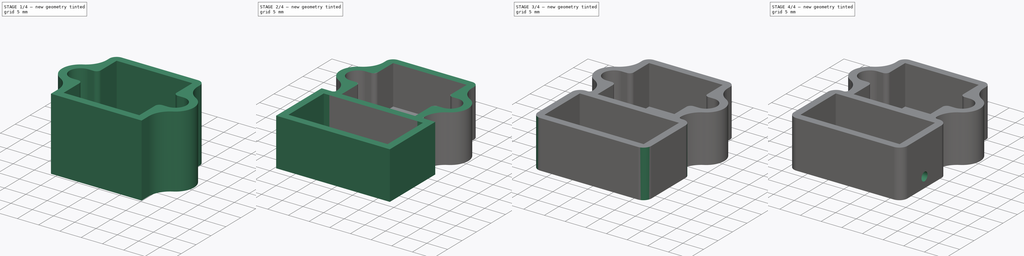
[diagram: build sequence overview — one tinted view per stage of 4, left to right]
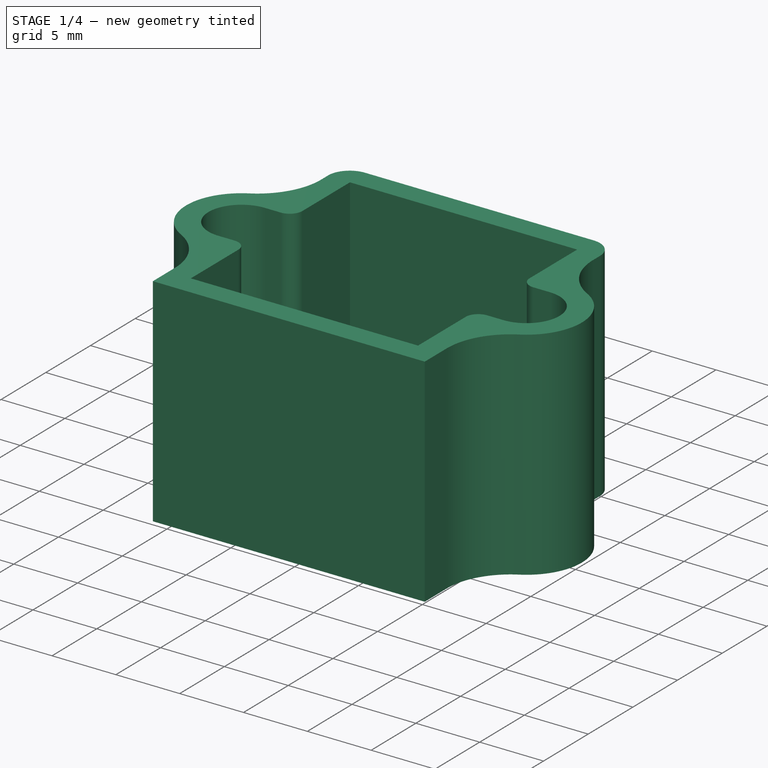
[diagram: stage 1 of 4 — iso view after this stage's code; geometry added in this stage tinted green]
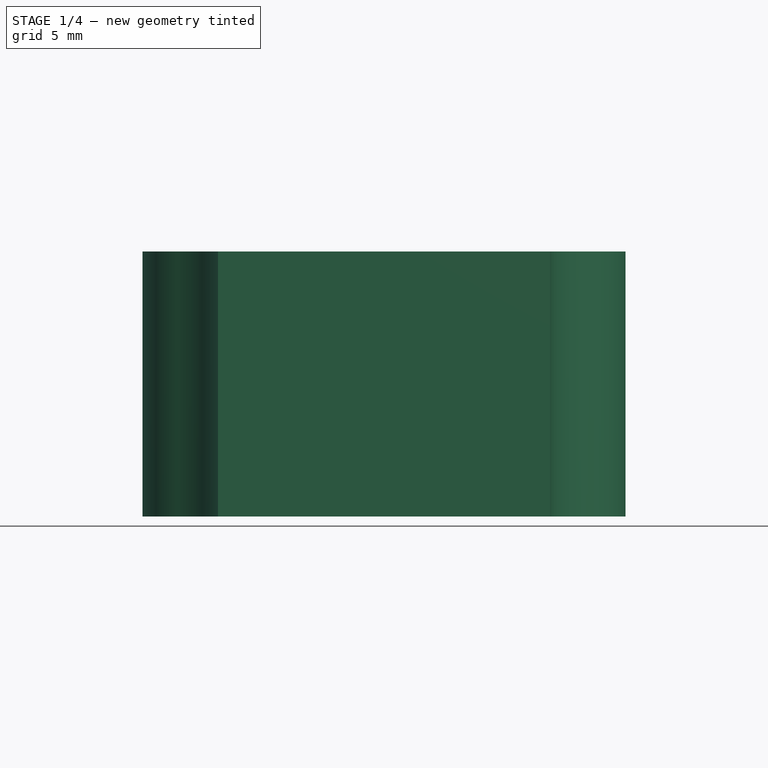
[diagram: stage 1 of 4 — front view after this stage's code; geometry added in this stage tinted green]
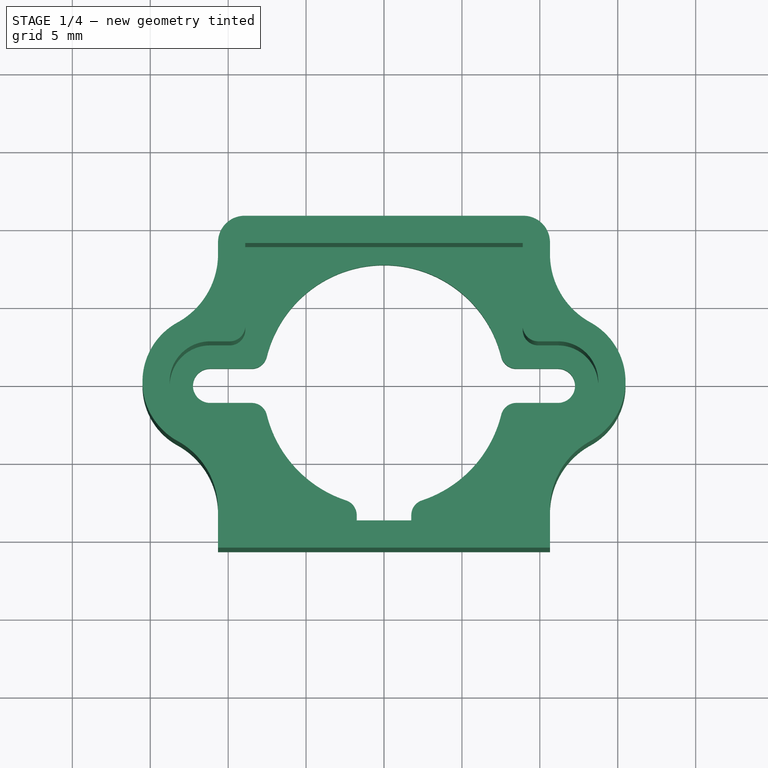
[diagram: stage 1 of 4 — top view after this stage's code; geometry added in this stage tinted green]
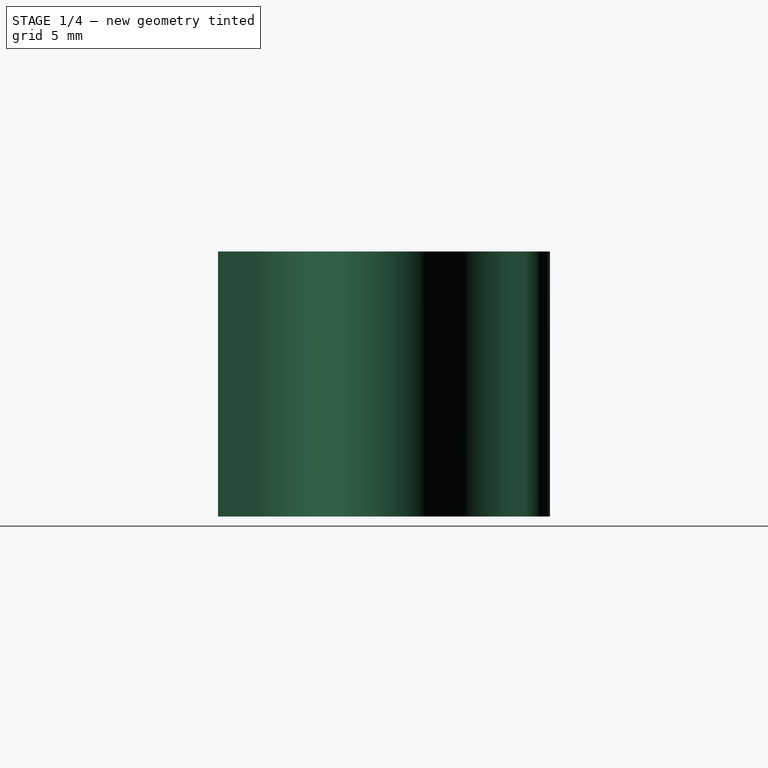
[diagram: stage 1 of 4 — right view after this stage's code; geometry added in this stage tinted green]
FCSTD DOCUMENT  (FreeCAD 0.21R33771 (Git))
Label: shield-can-s9g
License: All rights reserved
LicenseURL: http://en.wikipedia.org/wiki/All_rights_reserved
objects: Sketcher::SketchObject×5, PartDesign::Pocket×4, PartDesign::Pad×3, PartDesign::Fillet×3, Part::Feature×1, PartDesign::FeatureBase×1, PartDesign::Body×1
note: 28 computed .brp shape members not serialized (recipe doc carries the construction recipe); baked Part::Feature solids carry a one-line shape summary decoded from their .brp

FEATURE [Part::Feature] Body001
  shape: bbox 31 x 25.3 x 19.08 mm, 66 faces (baked)
FEATURE [PartDesign::FeatureBase] BaseFeature
  BaseFeature = -> Body001
FEATURE [PartDesign::Pocket] Pocket
  BaseFeature = -> BaseFeature
  Direction = (0,0,-1)
  Length = 5
  Length2 = 5
  Profile = -> BaseFeature [Face64]
  Type = 1
FEATURE [Sketcher::SketchObject] Sketch
  ExternalGeometry = -> [Pocket]
  FullyConstrained = true
  MapMode = 5
  Placement = pos=(0,-10.65,0) rot=(1,0,0;1.5708rad)
  Support = -> [Pocket]
  sketch-geometry (1):
    g0: Circle CenterX=0 CenterY=8.5 CenterZ=0 NormalX=0 NormalY=0 NormalZ=1 AngleXU=0 Radius=6.2
  constraints (2):
    c: Coincident(g0,g-3)
    c: Equal(g0,g-3)
FEATURE [PartDesign::Pad] Pad
  BaseFeature = -> Pocket
  Direction = (0,-1,2e-16)
  Length = 10
  Length2 = 10
  Profile = -> Sketch
  ReferenceAxis = -> Sketch [N_Axis]
  Type = 3
  UpToFace = -> Pocket [Face48]
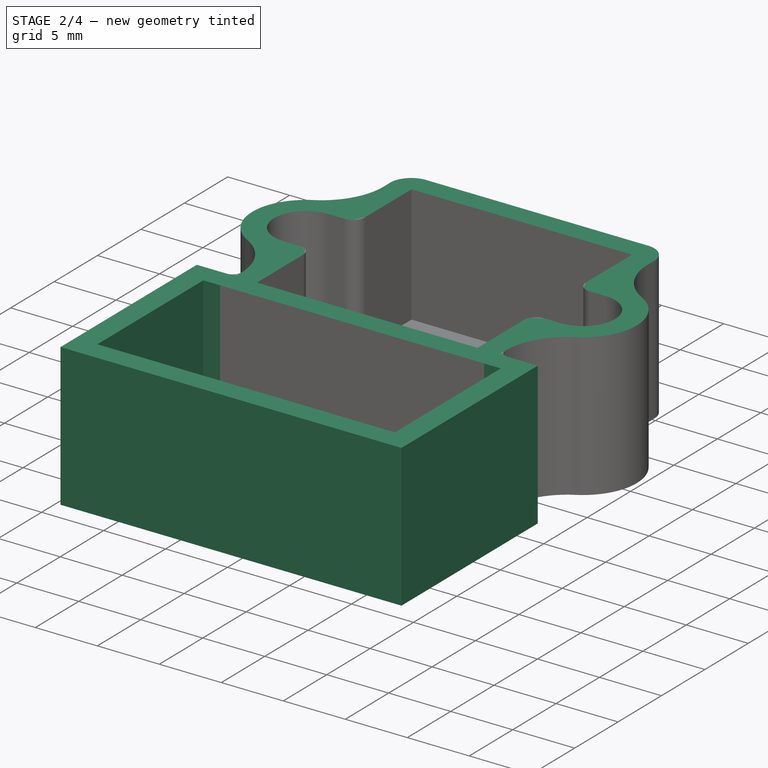
[diagram: stage 2 of 4 — iso view after this stage's code; geometry added in this stage tinted green]
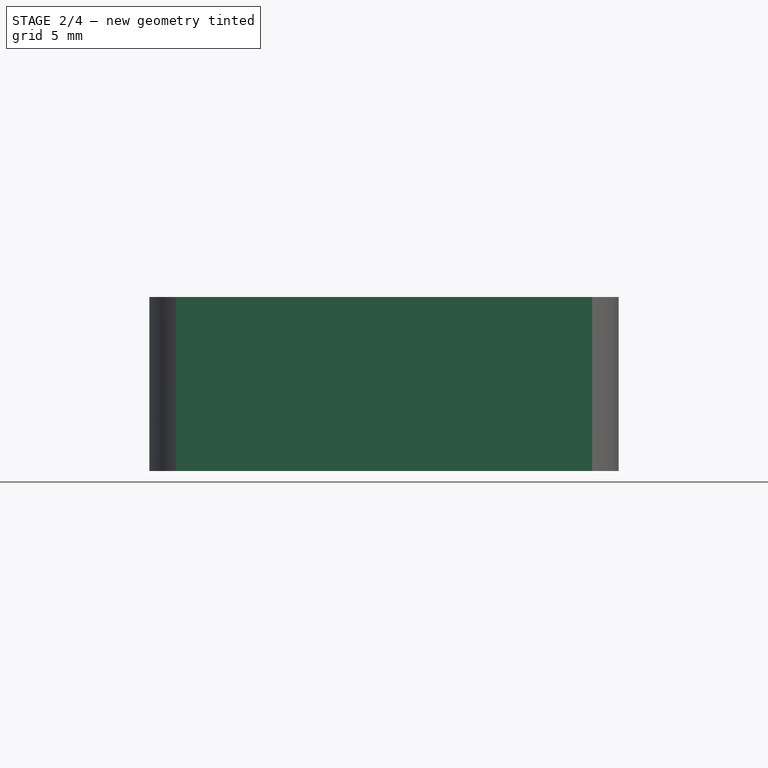
[diagram: stage 2 of 4 — front view after this stage's code; geometry added in this stage tinted green]
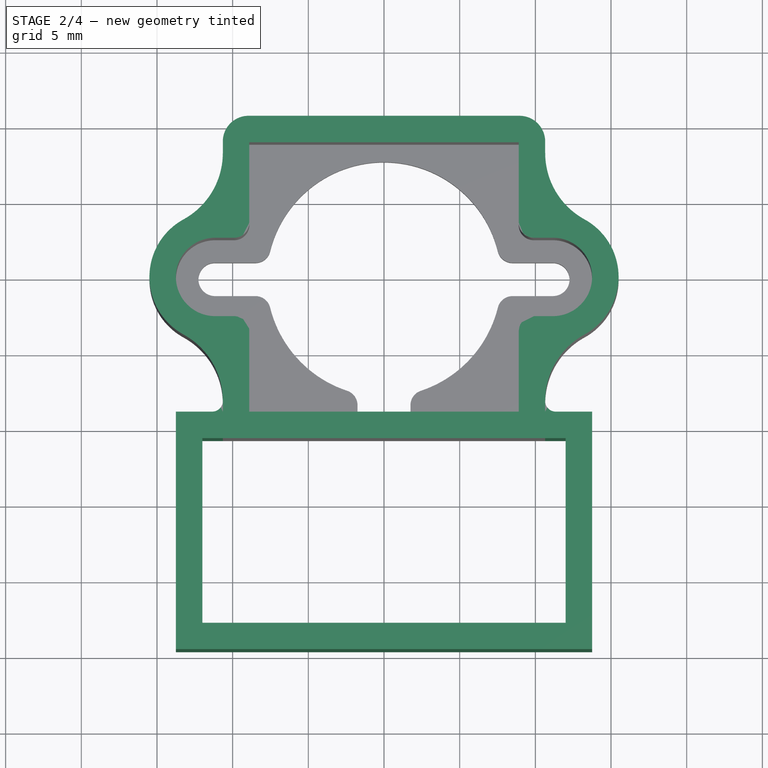
[diagram: stage 2 of 4 — top view after this stage's code; geometry added in this stage tinted green]
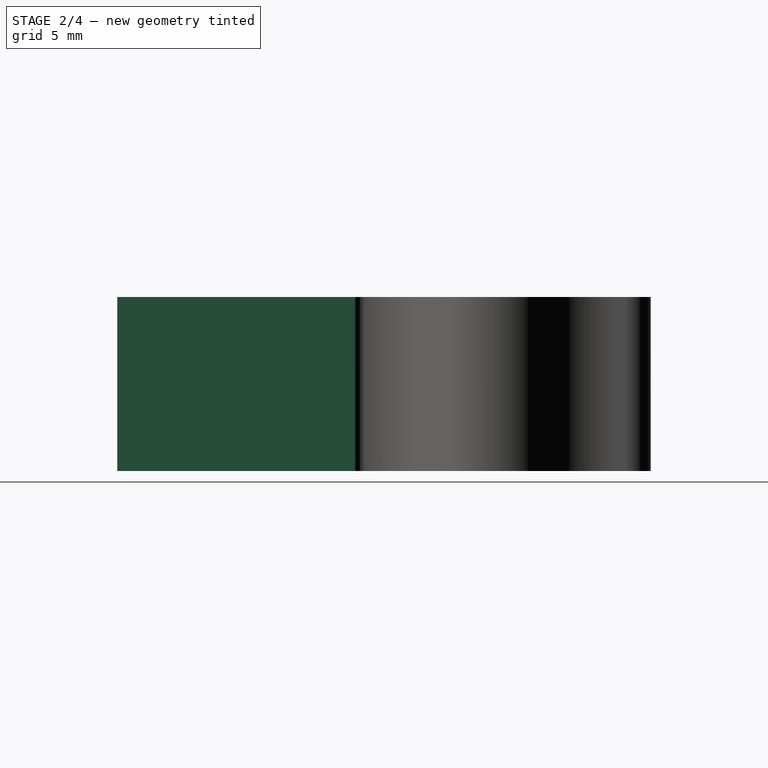
[diagram: stage 2 of 4 — right view after this stage's code; geometry added in this stage tinted green]
FEATURE [Sketcher::SketchObject] Sketch001
  ExternalGeometry = -> [Pad]
  FullyConstrained = true
  MapMode = 5
  Placement = pos=(0,-10.65,0) rot=(1,0,0;1.5708rad)
  Support = -> [Pad]
  sketch-geometry (4):
    g0: LineSegment StartX=-20 StartY=17 StartZ=0 EndX=20 EndY=17 EndZ=0
    g1: LineSegment StartX=20 StartY=17 StartZ=0 EndX=20 EndY=11.5 EndZ=0
    g2: LineSegment StartX=20 StartY=11.5 StartZ=0 EndX=-20 EndY=11.5 EndZ=0
    g3: LineSegment StartX=-20 StartY=11.5 StartZ=0 EndX=-20 EndY=17 EndZ=0
  constraints (11):
    c: Coincident(g0,g1)
    c: Coincident(g1,g2)
    c: Coincident(g2,g3)
    c: Coincident(g3,g0)
    c: Horizontal(g2)
    c: Vertical(g1)
    c: Vertical(g3)
    c: Symmetric(g0,g0,g-2)
    c: PointOnObject(g-3,g0)
    c: DistanceX(g0,g0) = 40
    c: DistanceY(g-5,g2) = 9.5
FEATURE [PartDesign::Pocket] Pocket001
  BaseFeature = -> Pad
  Direction = (0,1,-2e-16)
  Length = 5
  Length2 = 5
  Profile = -> Sketch001
  ReferenceAxis = -> Sketch001 [N_Axis]
  Type = 1
FEATURE [Sketcher::SketchObject] Sketch002
  ExternalGeometry = -> [Pocket001]
  FullyConstrained = false
  MapMode = 5
  Placement = pos=(0,2.5e-15,11.5) rot=(0,0,1;0rad)
  Support = -> [Pocket001]
  sketch-geometry (11):
    g0: LineSegment StartX=-12 StartY=-10.65 StartZ=0 EndX=12 EndY=-10.65 EndZ=0
    g1: LineSegment StartX=12 StartY=-10.65 StartZ=0 EndX=12 EndY=-22.85 EndZ=0
    g2: LineSegment StartX=12 StartY=-22.85 StartZ=0 EndX=-12 EndY=-22.85 EndZ=0
    g3: LineSegment StartX=-12 StartY=-22.85 StartZ=0 EndX=-12 EndY=-10.65 EndZ=0
    g4: LineSegment StartX=-13.75 StartY=-8.9 StartZ=0 EndX=13.75 EndY=-8.9 EndZ=0
    g5: LineSegment StartX=13.75 StartY=-8.9 StartZ=0 EndX=13.75 EndY=-24.6 EndZ=0
    g6: LineSegment StartX=13.75 StartY=-24.6 StartZ=0 EndX=-13.75 EndY=-24.6 EndZ=0
    g7: LineSegment StartX=-13.75 StartY=-24.6 StartZ=0 EndX=-13.75 EndY=-8.9 EndZ=0
    g8: LineSegment StartX=-9.00529 StartY=-8.9 StartZ=0 EndX=-9.00529 EndY=-10.65 EndZ=0
    g9: LineSegment StartX=-12 StartY=-10.65 StartZ=0 EndX=-13.75 EndY=-10.65 EndZ=0
    g10: LineSegment StartX=-12 StartY=-22.85 StartZ=0 EndX=-12 EndY=-24.6 EndZ=0
  constraints (31):
    c: Coincident(g0,g1)
    c: Coincident(g1,g2)
    c: Coincident(g2,g3)
    c: Coincident(g3,g0)
    c: Horizontal(g2)
    c: Vertical(g1)
    c: Vertical(g3)
    c: Symmetric(g0,g0,g-2)
    c: PointOnObject(g-3,g0)
    c: DistanceX(g2,g2) = 24
    c: DistanceY(g3,g3) = 12.2
    c: Coincident(g4,g5)
    c: Coincident(g5,g6)
    c: Coincident(g6,g7)
    c: Coincident(g7,g4)
    c: Horizontal(g4)
    c: Vertical(g5)
    c: Vertical(g7)
    c: Symmetric(g5,g6,g-2)
    c: PointOnObject(g-4,g4)
    c: PointOnObject(g8,g4)
    c: PointOnObject(g8,g0)
    c: Vertical(g8)
    c: Coincident(g9,g0)
    c: PointOnObject(g9,g7)
    c: Horizontal(g9)
    c: Equal(g9,g8)
    c: Coincident(g10,g2)
    c: PointOnObject(g10,g6)
    c: Vertical(g10)
    c: Equal(g10,g9)
FEATURE [PartDesign::Pad] Pad001
  BaseFeature = -> Pocket001
  Direction = (0,2e-16,1)
  Length = 10
  Length2 = 10
  Profile = -> Sketch002
  ReferenceAxis = -> Sketch002 [N_Axis]
  Type = 3
  UpToFace = -> Pocket001 [Face4]
FEATURE [PartDesign::Fillet] Fillet
  Base = -> Pad001 [Edge140,Edge135]
  BaseFeature = -> Pad001
  Radius = 0.7
  SupportTransform = false
  UseAllEdges = false
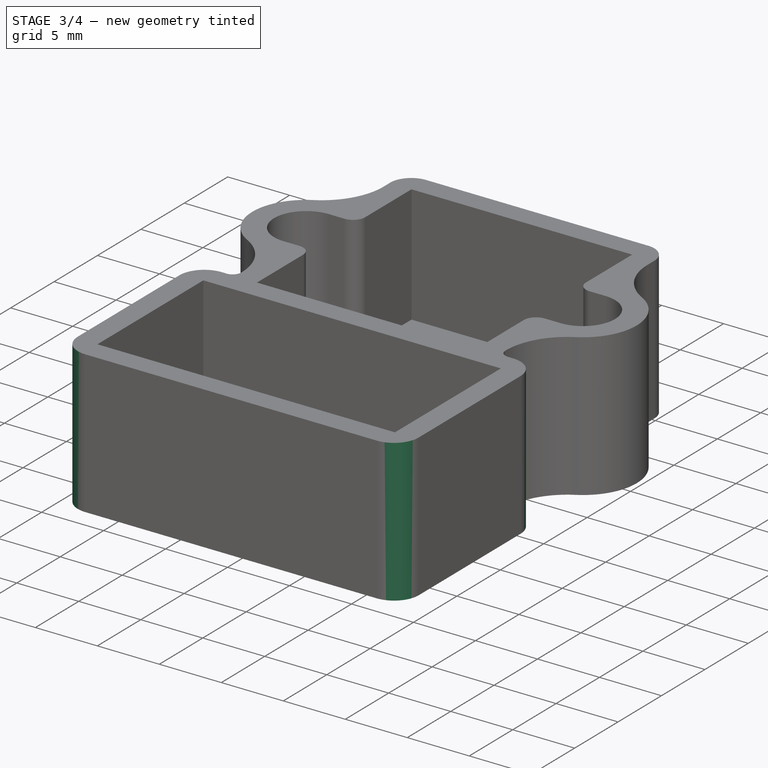
[diagram: stage 3 of 4 — iso view after this stage's code; geometry added in this stage tinted green]
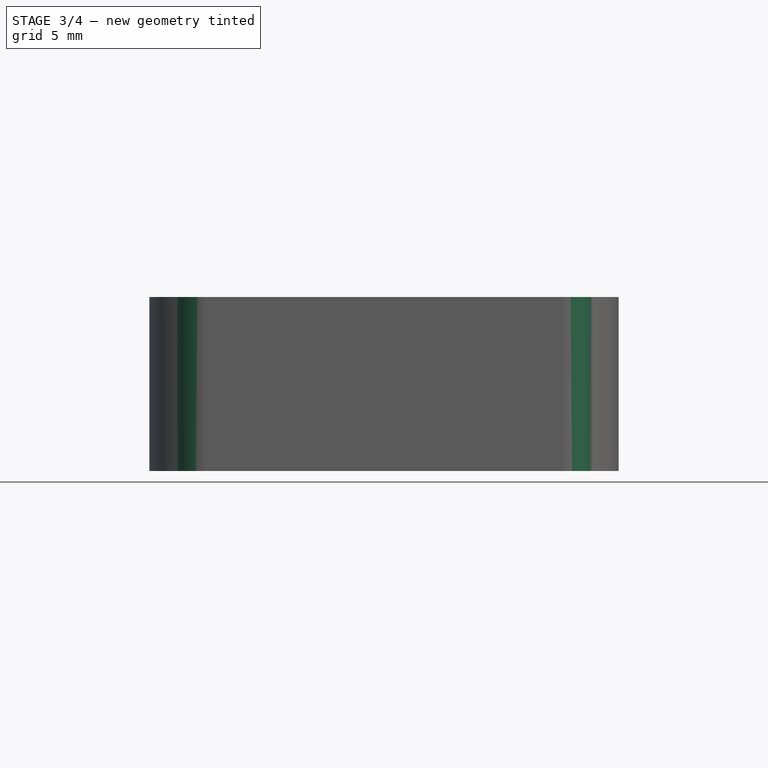
[diagram: stage 3 of 4 — front view after this stage's code; geometry added in this stage tinted green]
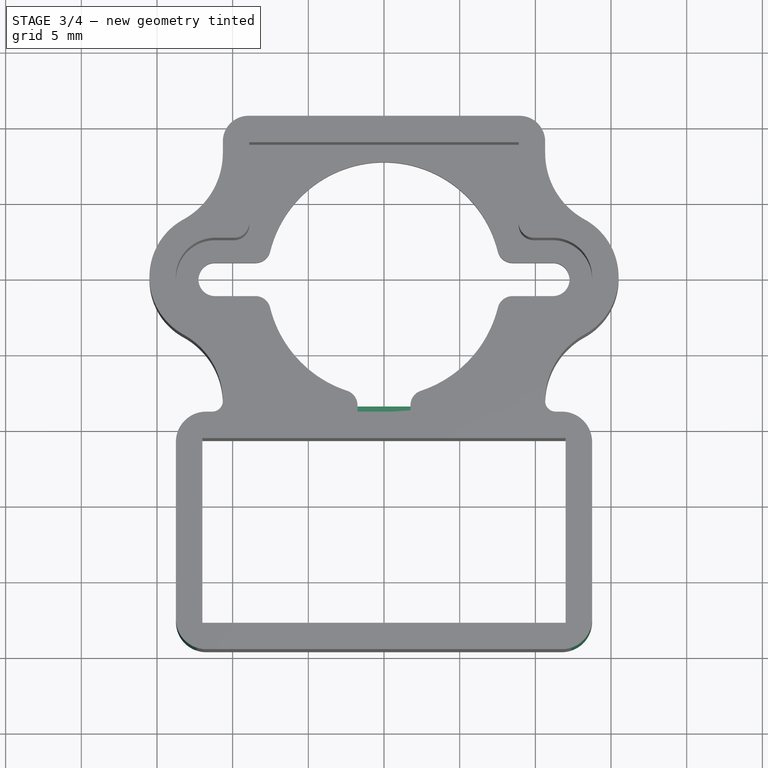
[diagram: stage 3 of 4 — top view after this stage's code; geometry added in this stage tinted green]
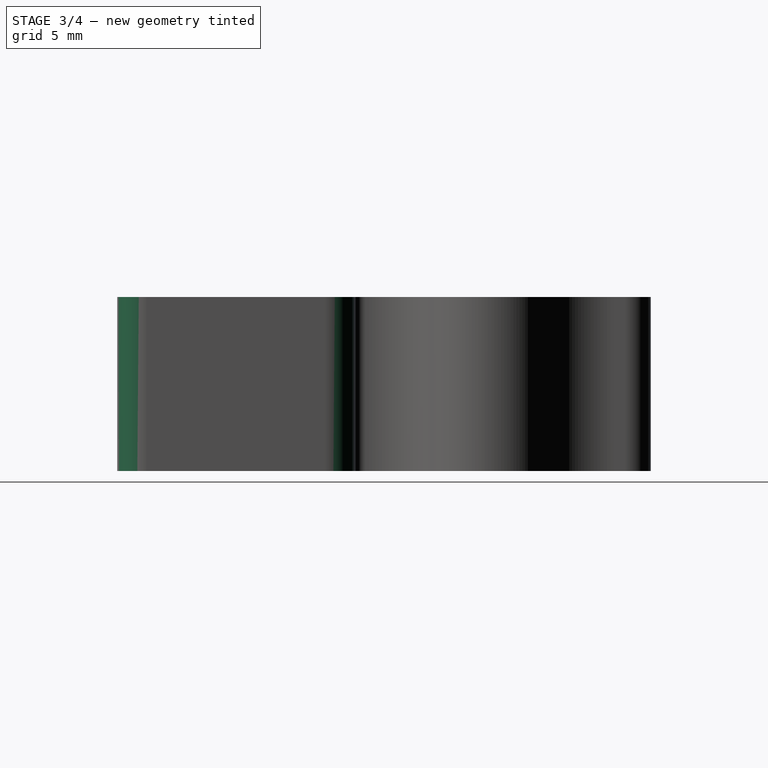
[diagram: stage 3 of 4 — right view after this stage's code; geometry added in this stage tinted green]
FEATURE [PartDesign::Fillet] Fillet001
  Base = -> Fillet [Edge132,Edge124,Edge128,Edge130]
  BaseFeature = -> Fillet
  Radius = 2
  SupportTransform = false
  UseAllEdges = false
FEATURE [PartDesign::Pad] Pad002
  BaseFeature = -> Fillet001
  Direction = (0,1,0)
  Length = 0.5
  Length2 = 10
  Profile = -> Fillet001 [Face37,Face38,Face18]
  Type = 0
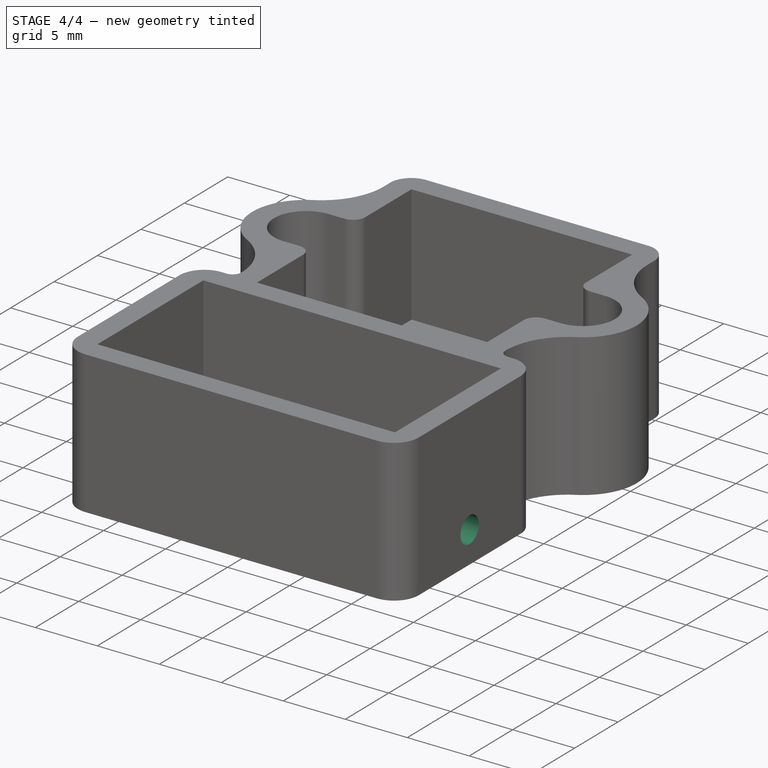
[diagram: stage 4 of 4 — iso view after this stage's code; geometry added in this stage tinted green]
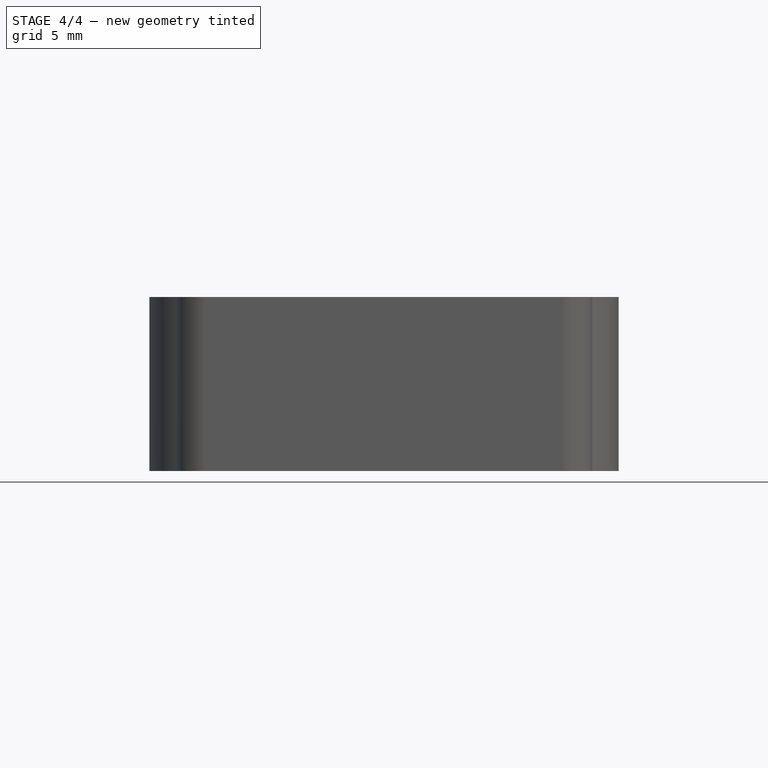
[diagram: stage 4 of 4 — front view after this stage's code; geometry added in this stage tinted green]
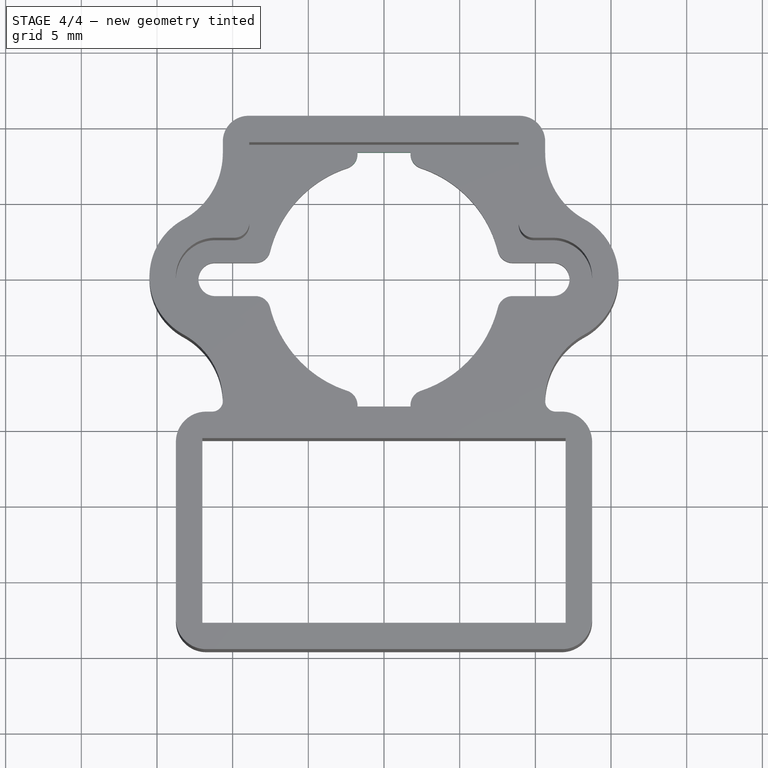
[diagram: stage 4 of 4 — top view after this stage's code; geometry added in this stage tinted green]
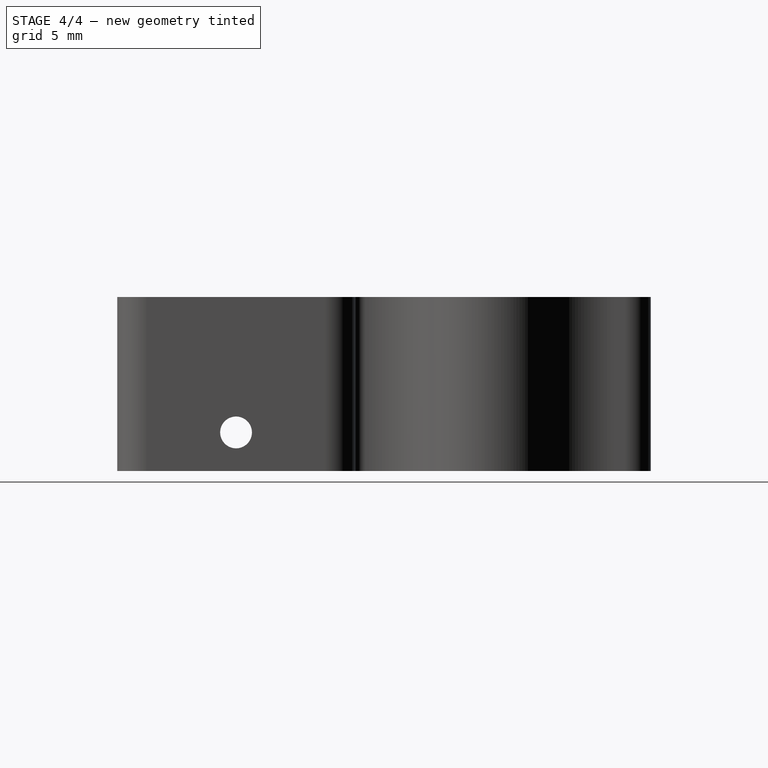
[diagram: stage 4 of 4 — right view after this stage's code; geometry added in this stage tinted green]
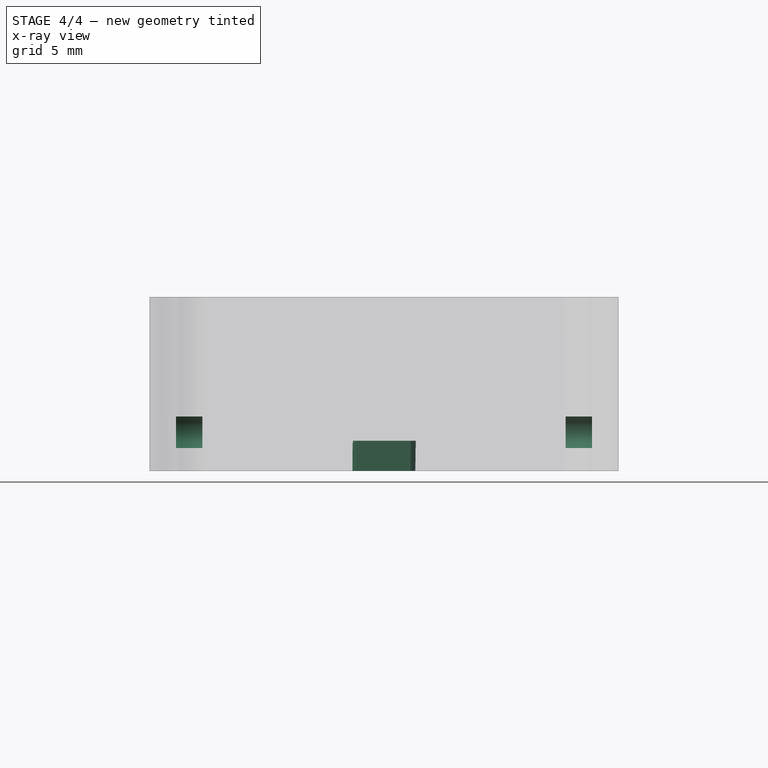
[diagram: stage 4 of 4 — x-ray composite at the front view; earlier geometry ghosted, this stage's added geometry solid]
FEATURE [Sketcher::SketchObject] Sketch003
  ExternalGeometry = -> [Pad002]
  FullyConstrained = true
  MapMode = 5
  Placement = pos=(-13.75,0,0) rot=(0.57735,-0.57735,-0.57735;2.0944rad)
  Support = -> [Pad002]
  sketch-geometry (2):
    g0: Circle CenterX=16.75 CenterY=2.55 CenterZ=0 NormalX=0 NormalY=0 NormalZ=1 AngleXU=0 Radius=1.05
    g1: LineSegment StartX=16.75 StartY=1.5 StartZ=0 EndX=16.75 EndY=11.5 EndZ=0
  constraints (6):
    c: Symmetric(g-5,g-4,g1)
    c: PointOnObject(g0,g1)
    c: PointOnObject(g1,g0)
    c: DistanceY(g-4,g1) = 1.5
    c: Horizontal(g1,g-4)
    c: Diameter(g0) = 2.1
FEATURE [PartDesign::Pocket] Pocket002
  BaseFeature = -> Pad002
  Direction = (1,0,0)
  Length = 5
  Length2 = 5
  Profile = -> Sketch003
  ReferenceAxis = -> Sketch003 [N_Axis]
  Type = 1
FEATURE [Sketcher::SketchObject] Sketch004
  ExternalGeometry = -> [Pocket002]
  FullyConstrained = true
  MapMode = 5
  Placement = pos=(0,0,0) rot=(1,0,0;3.14159rad)
  Support = -> [Pocket002]
  sketch-geometry (4):
    g0: LineSegment StartX=-1.75 StartY=8.4 StartZ=0 EndX=1.75 EndY=8.4 EndZ=0
    g1: LineSegment StartX=1.75 StartY=8.4 StartZ=0 EndX=1.75 EndY=-8.4 EndZ=0
    g2: LineSegment StartX=1.75 StartY=-8.4 StartZ=0 EndX=-1.75 EndY=-8.4 EndZ=0
    g3: LineSegment StartX=-1.75 StartY=-8.4 StartZ=0 EndX=-1.75 EndY=8.4 EndZ=0
  constraints (11):
    c: Coincident(g0,g1)
    c: Coincident(g1,g2)
    c: Coincident(g2,g3)
    c: Coincident(g3,g0)
    c: Horizontal(g0)
    c: Horizontal(g2)
    c: Vertical(g1)
    c: Coincident(g0,g-3)
    c: PointOnObject(g0,g-4)
    c: Symmetric(g2,g0,g-1)
    c: Radius(g-6) = 1
FEATURE [PartDesign::Pocket] Pocket003
  BaseFeature = -> Pocket002
  Direction = (0,0,1)
  Length = 5
  Length2 = 5
  Profile = -> Sketch004
  ReferenceAxis = -> Sketch004 [N_Axis]
  Type = 1
FEATURE [PartDesign::Fillet] Fillet002
  Base = -> Pocket003 [Edge207,Edge213]
  BaseFeature = -> Pocket003
  Radius = 1
  SupportTransform = false
  UseAllEdges = false
FEATURE [PartDesign::Body] Body
  BaseFeature = -> Body001
  Group = -> [BaseFeature,Pocket,Sketch,Pad,Sketch001,Pocket001,Sketch002,Pad001,Fillet,Fillet001,Pad002,Sketch003,Pocket002,Sketch004,Pocket003,Fillet002]
  Origin = -> Origin
  Tip = -> Fillet002
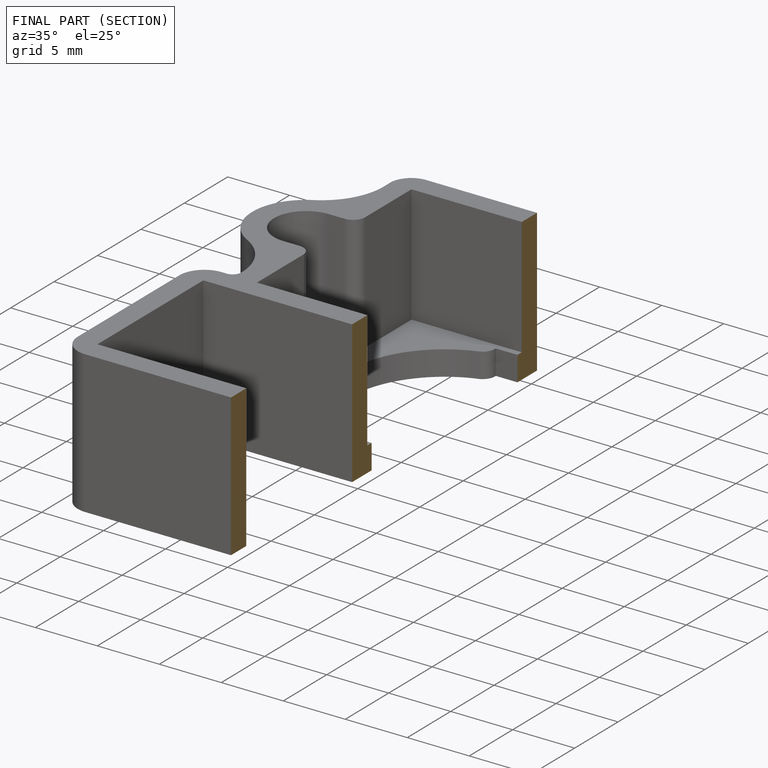
[diagram: finished part — half-section view (interior)]
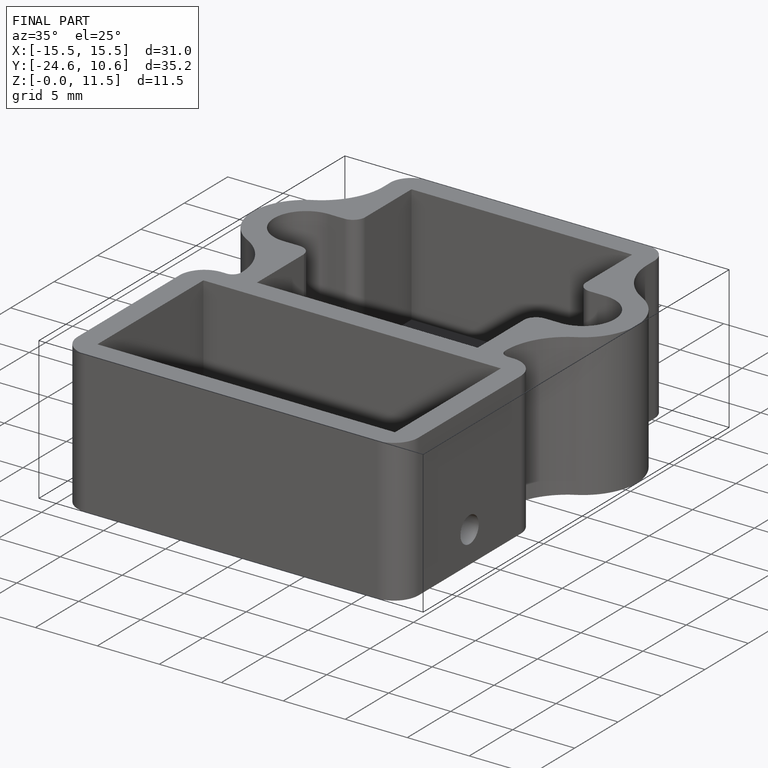
[diagram: finished part — iso view with bounding-box wireframe]
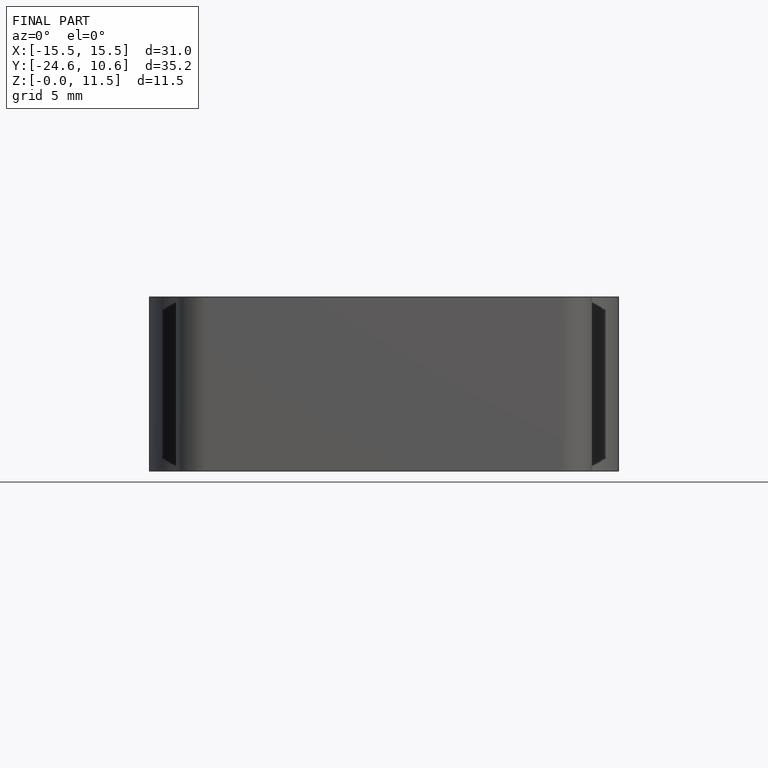
[diagram: finished part — front view with bounding-box wireframe]
